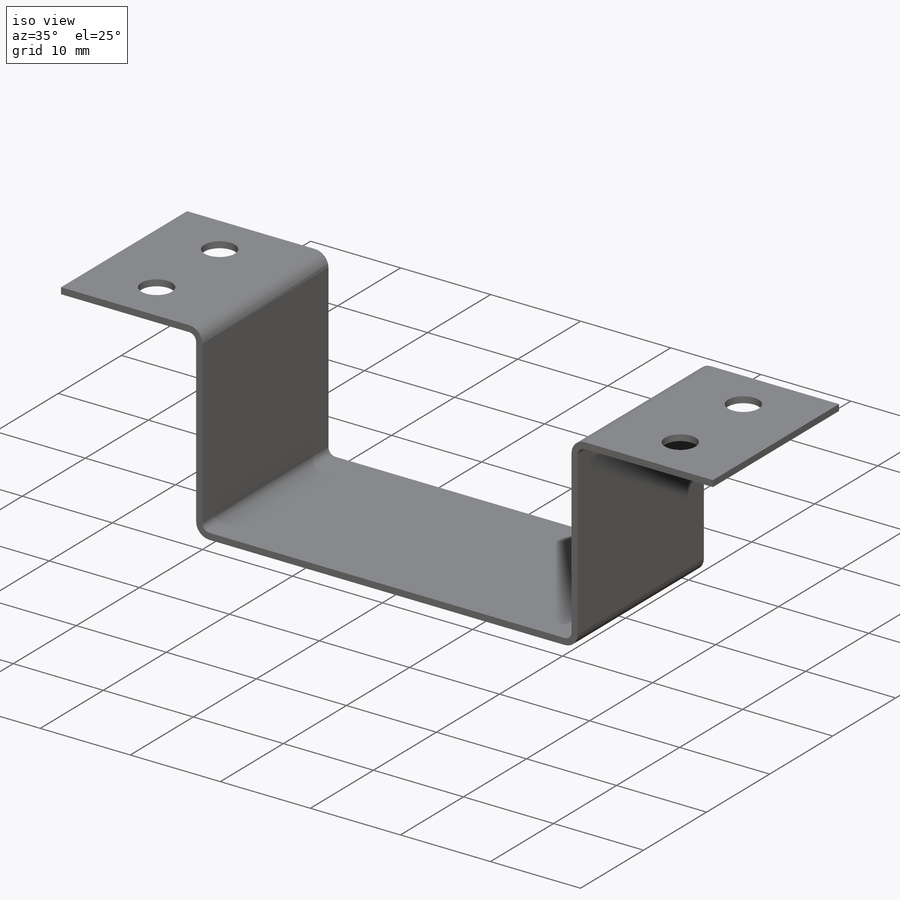
[diagram: iso view]
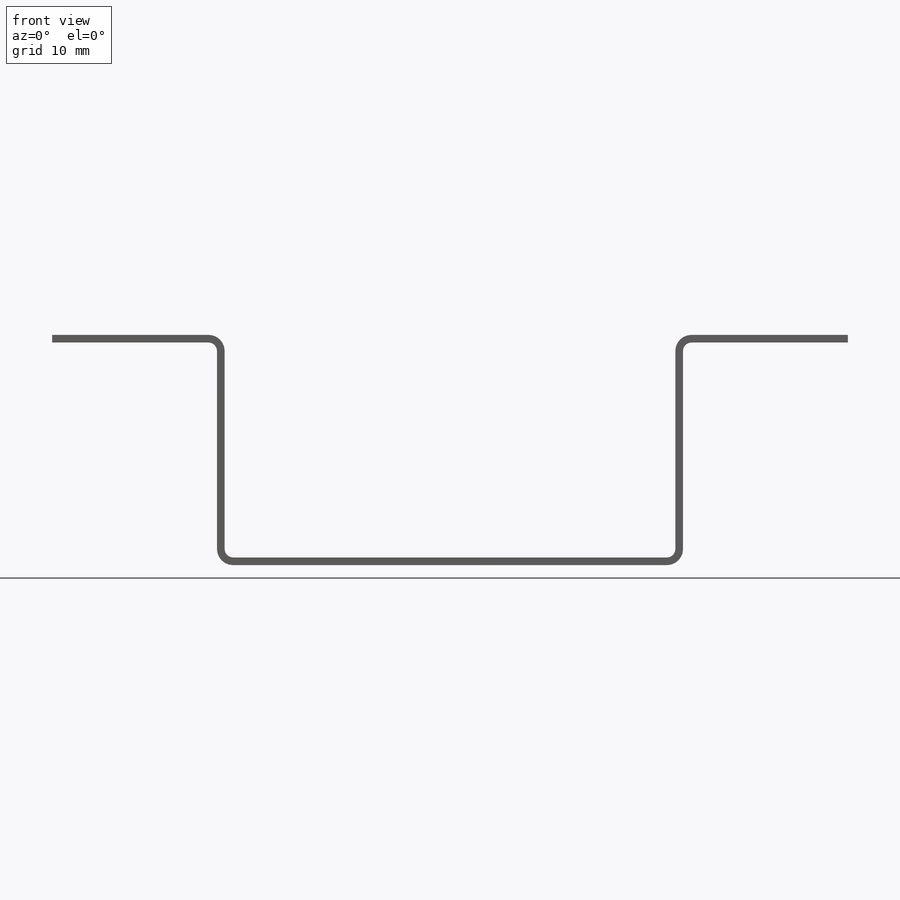
[diagram: front view]
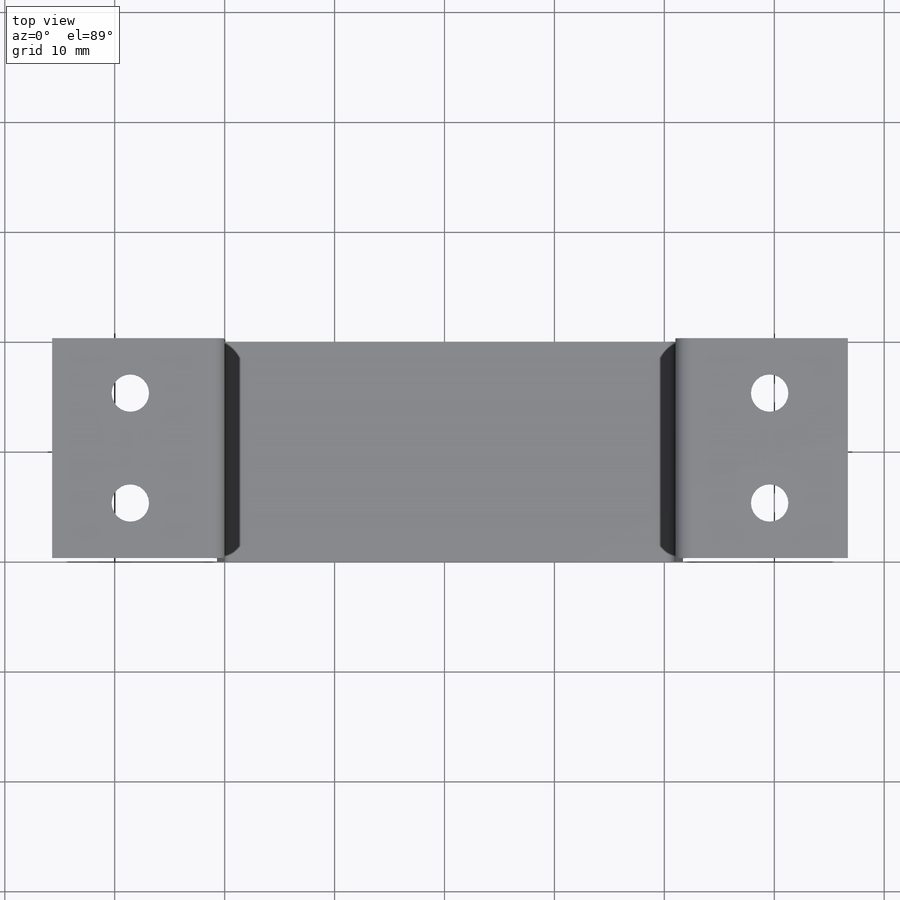
[diagram: top view]
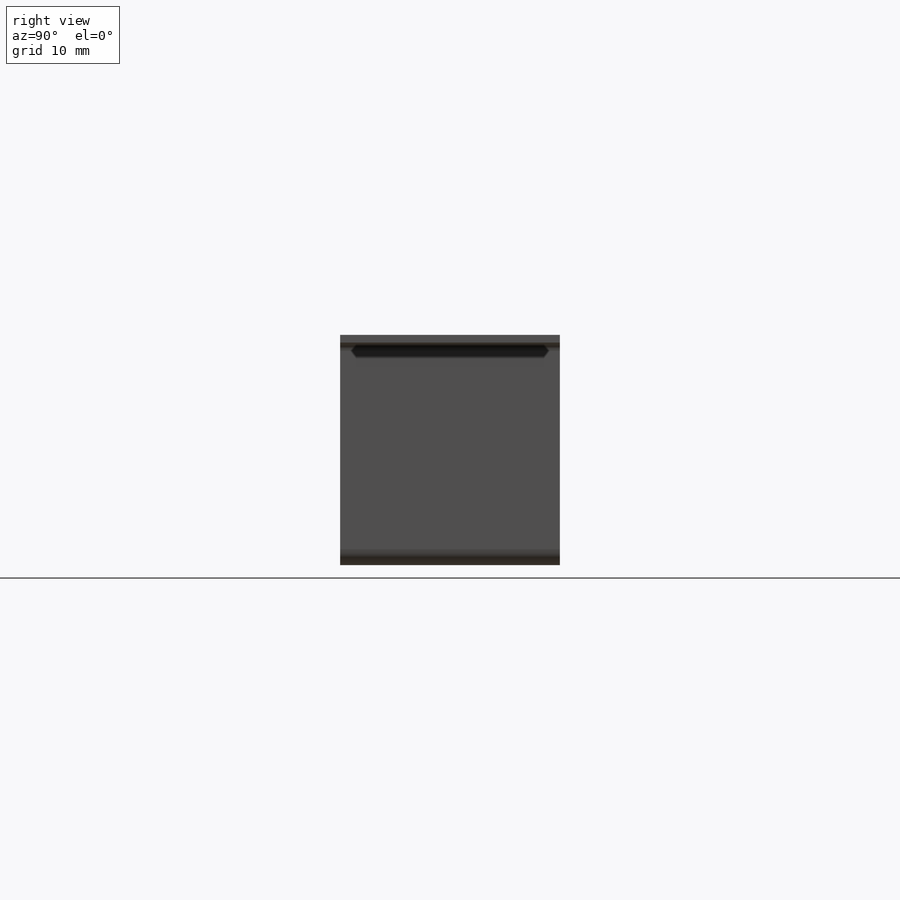
[diagram: right view]
SOLIDWORKS PART (.sldprt)
format: sldprt  version: not decoded by parser v0  size: 349,696 bytes
history: native  units: mm
features: sketch x17, sheet_metal_op x5, mirror x5, hole x5, material x1, plane x1 + 11 further entries (+12 scaffold rows collapsed; 5 parser-record rows omitted)
feature tree (62):
  scaffold x12  (default folders/planes/origin — collapsed)
  material  "Material <not specified>"
  sketch  "Sketch1"  dims[c1.D1=~30.03042mm c1.D2=~62.512556mm c2.D1=41.0mm c2.D2=20.0mm c3.D1=0.762mm c3.D2=0.389 c3.D3=1.1938mm c3.D6=500.0mm]
  sheet_metal_op  "Base-Flange1"
  plane  "Mid"
  sketch  "Sketch4"  dims[c1.D1=0.762mm c1.D4=90.0deg c1.D5=1.0 c1.D8=0.35mm c1.D9=0.35mm c2.D1=0.762mm c2.D2=500.0mm c2.D3=0.0mm c2.D6=10.0mm c2.D7=20.25mm c2.Edge-Flange2=0.0]
  sketch  "Sketch7"
  sheet_metal_op  "EdgeBend2"
  mirror  "Mirror1"
  sheet_metal_op  "MirrorBend1"
  sheet_metal_op  "MirrorBend2"
  hole  "M3 Clearance Hole1"  Diameter=3.4mm Depth=0.699mm
  sketch  "Sketch9"  dims[D1=5.0mm D2=5.0mm D3=5.0mm D4=5.0mm]
  sketch  "Sketch8"  dims[hole-wizard template sketch: 47 standard entries collapsed; hole parameters kept: c15.Hole Depth=0.699mm c15.D3=~14.816244mm c15.Drill Angle=118.0deg]
  sketch  "Bend-Lines1"
  sketch  "Bounding-Box1"
  sheet_metal_op  "Sheet-Metal(1)"
  "Flat-Pattern(1)"
  sketch  "Bend-Lines2"
  sketch  "Bounding-Box2"
  parser-record x5  (decoder bookkeeping rows leaked as tree rows — omitted from the tree; the rows remain in map.json)
  mirror  "Sheet-Metal(8)"
  hole  "Flat-Pattern(1)"  [1 undecoded]
  sketch  "Bend-Lines2"
  sketch  "Bounding-Box2"
  mirror  "Sheet-Metal(9)"
  hole  "Flat-Pattern(1)"  [1 undecoded]
  sketch  "Bend-Lines2"
  sketch  "Bounding-Box2"
  "Flatten-<EdgeBend1>1"
  "Flatten-<EdgeBend2>1"
  mirror  "Sheet-Metal(10)"
  hole  "Flat-Pattern(1)"  [1 undecoded]
  sketch  "Bend-Lines2"
  sketch  "Bounding-Box2"
  "Flatten-<EdgeBend1>1"
  "Flatten-<EdgeBend2>1"
  "Flatten-<MirrorBend1>1"
  "Flatten-<MirrorBend2>1"
  mirror  "Sheet-Metal(11)"
  hole  "Flat-Pattern(1)"  [1 undecoded]
  sketch  "Bend-Lines2"
  sketch  "Bounding-Box2"
  "Flatten-<EdgeBend1>1"
  "Flatten-<EdgeBend2>1"
  "Flatten-<MirrorBend1>1"
  "Flatten-<MirrorBend2>1"
decode coverage: 5 of 32 modeling features carry decoded parameters; 11 rows unclassified (native names shown)
note: ~ marks probable driven/reference dimensions
note: 4 parameter values undecoded
summary: no parameter record found for 4 features
note: suppression state not decoded; provenance and decode notes live in map.json
